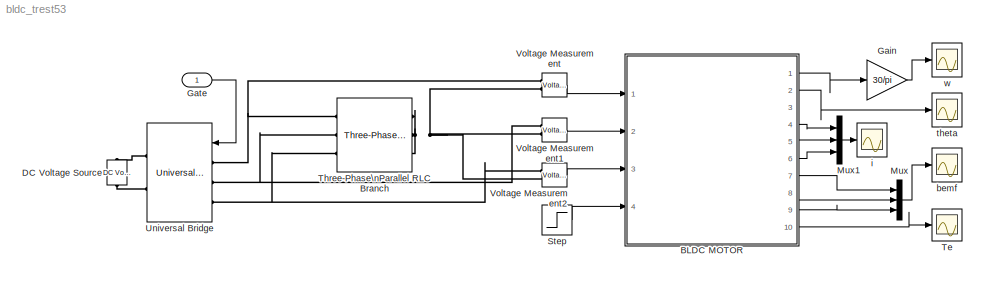
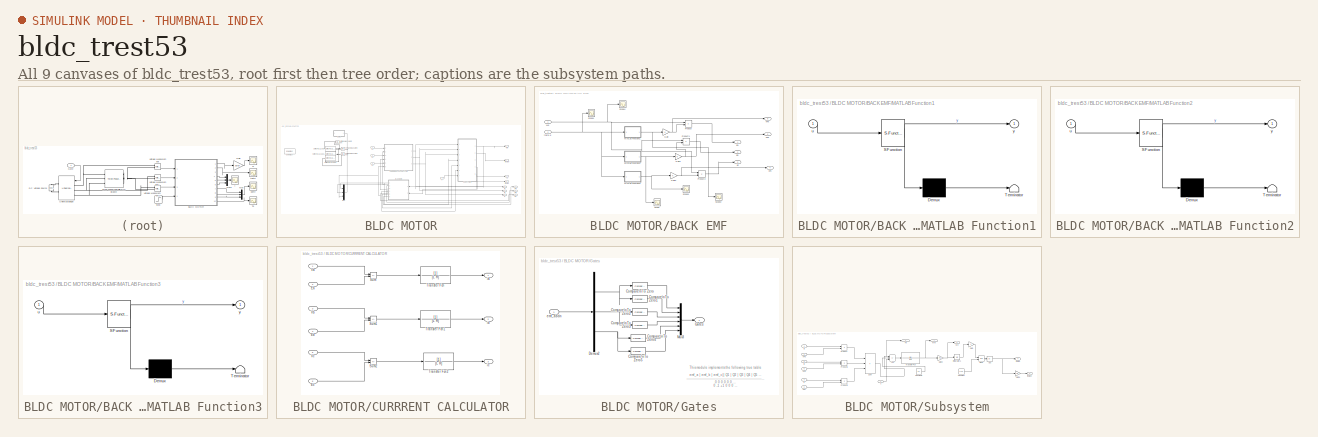
[diagram: thumbnail index - all 9 canvases of the model, root first then tree order]
MODEL bldc_trest53
KIND model
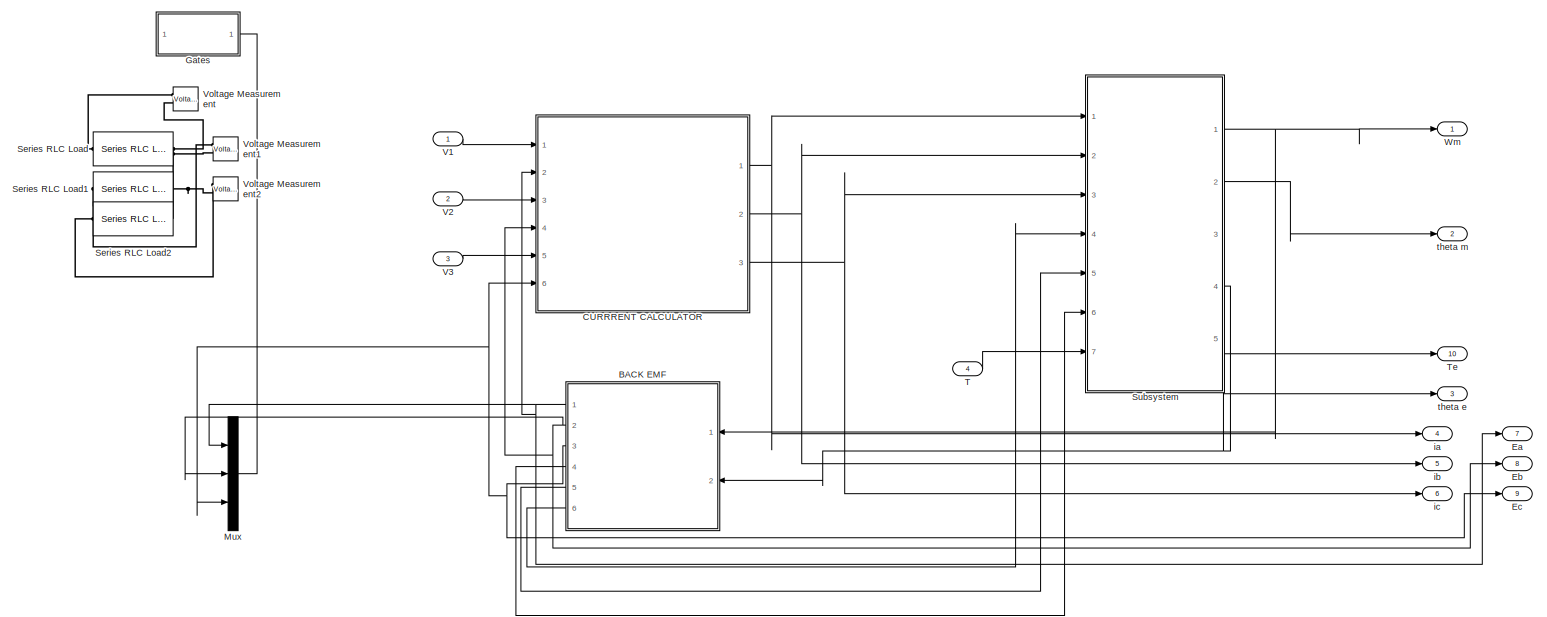
[diagram: BLDC MOTOR - part 1/2, most of the canvas]
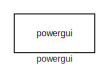
[diagram: BLDC MOTOR - part 2/2, top left region]
BLOCK [SubSystem] BLDC MOTOR
  Ports = [4, 10]
  RequestExecContextInheritance = off
  SID = 117
BLOCK [SubSystem] BLDC MOTOR/BACK EMF
  Ports = [2, 6]
  RequestExecContextInheritance = off
  SID = 146
BLOCK [Outport] BLDC MOTOR/BACK EMF/Ea
  SID = 148
BLOCK [Outport] BLDC MOTOR/BACK EMF/Eb
  Port = 2
  SID = 149
BLOCK [Outport] BLDC MOTOR/BACK EMF/Ec
  Port = 3
  SID = 150
BLOCK [Gain] BLDC MOTOR/BACK EMF/Gain
  Gain = K
  SID = 177
BLOCK [Gain] BLDC MOTOR/BACK EMF/Gain1
  Gain = K
  SID = 183
BLOCK [Gain] BLDC MOTOR/BACK EMF/Gain2
  Gain = K
  SID = 186
BLOCK [Outport] BLDC MOTOR/BACK EMF/KFa
  Port = 6
  SID = 187
BLOCK [Outport] BLDC MOTOR/BACK EMF/KFb
  Port = 5
  SID = 188
BLOCK [Outport] BLDC MOTOR/BACK EMF/KFc
  Port = 4
  SID = 189
BLOCK [SubSystem] BLDC MOTOR/BACK EMF/MATLAB Function1
  ErrorFcn = Stateflow.Translate.translate
  PermitHierarchicalResolution = ExplicitOnly
  Ports = [1, 1]
  RequestExecContextInheritance = off
  SFBlockType = MATLAB Function
  SID = 233
  TreatAsAtomicUnit = on
BLOCK [Demux] BLDC MOTOR/BACK EMF/MATLAB Function1/ Demux 
  Outputs = 1
  Ports = [1, 1]
  SID = 233::47
BLOCK [S-Function] BLDC MOTOR/BACK EMF/MATLAB Function1/ SFunction 
  EnableBusSupport = on
  FunctionName = sf_sfun
  PortCounts = [1 2]
  Ports = [1, 2]
  SFcnIsStateOwnerBlock = off
  SFunctionDeploymentMode = off
  SID = 233::46
  Tag = Stateflow S-Function 1
BLOCK [Terminator] BLDC MOTOR/BACK EMF/MATLAB Function1/ Terminator 
  SID = 233::48
BLOCK [Inport] BLDC MOTOR/BACK EMF/MATLAB Function1/u
  SID = 233::1
BLOCK [Outport] BLDC MOTOR/BACK EMF/MATLAB Function1/y
  SID = 233::5
BLOCK [SubSystem] BLDC MOTOR/BACK EMF/MATLAB Function2
  ErrorFcn = Stateflow.Translate.translate
  PermitHierarchicalResolution = ExplicitOnly
  Ports = [1, 1]
  RequestExecContextInheritance = off
  SFBlockType = MATLAB Function
  SID = 243
  TreatAsAtomicUnit = on
BLOCK [Demux] BLDC MOTOR/BACK EMF/MATLAB Function2/ Demux 
  Outputs = 1
  Ports = [1, 1]
  SID = 243::47
BLOCK [S-Function] BLDC MOTOR/BACK EMF/MATLAB Function2/ SFunction 
  EnableBusSupport = on
  FunctionName = sf_sfun
  PortCounts = [1 2]
  Ports = [1, 2]
  SFcnIsStateOwnerBlock = off
  SFunctionDeploymentMode = off
  SID = 243::46
  Tag = Stateflow S-Function 2
BLOCK [Terminator] BLDC MOTOR/BACK EMF/MATLAB Function2/ Terminator 
  SID = 243::48
BLOCK [Inport] BLDC MOTOR/BACK EMF/MATLAB Function2/u
  SID = 243::1
BLOCK [Outport] BLDC MOTOR/BACK EMF/MATLAB Function2/y
  SID = 243::5
BLOCK [SubSystem] BLDC MOTOR/BACK EMF/MATLAB Function3
  ErrorFcn = Stateflow.Translate.translate
  PermitHierarchicalResolution = ExplicitOnly
  Ports = [1, 1]
  RequestExecContextInheritance = off
  SFBlockType = MATLAB Function
  SID = 246
  TreatAsAtomicUnit = on
BLOCK [Demux] BLDC MOTOR/BACK EMF/MATLAB Function3/ Demux 
  Outputs = 1
  Ports = [1, 1]
  SID = 246::47
BLOCK [S-Function] BLDC MOTOR/BACK EMF/MATLAB Function3/ SFunction 
  EnableBusSupport = on
  FunctionName = sf_sfun
  PortCounts = [1 2]
  Ports = [1, 2]
  SFcnIsStateOwnerBlock = off
  SFunctionDeploymentMode = off
  SID = 246::46
  Tag = Stateflow S-Function 3
BLOCK [Terminator] BLDC MOTOR/BACK EMF/MATLAB Function3/ Terminator 
  SID = 246::48
BLOCK [Inport] BLDC MOTOR/BACK EMF/MATLAB Function3/u
  SID = 246::1
BLOCK [Outport] BLDC MOTOR/BACK EMF/MATLAB Function3/y
  SID = 246::5
BLOCK [Product] BLDC MOTOR/BACK EMF/Product
  Ports = [2, 1]
  SID = 178
BLOCK [Product] BLDC MOTOR/BACK EMF/Product1
  Ports = [2, 1]
  SID = 182
BLOCK [Product] BLDC MOTOR/BACK EMF/Product2
  Ports = [2, 1]
  SID = 185
BLOCK [Scope] BLDC MOTOR/BACK EMF/Scope
  Floating = off
  NumInputPorts = 1
  Ports = [1]
  SID = 283
  ScopeSpecificationString = Simulink.scopes.TimeScopeBlockCfg('CurrentConfiguration', extmgr.ConfigurationSet(extmgr.Configuration('Core','General UI',true,'FigureColor',[0.156862745098039 0.156862745098039 0.156862745098039]),extmgr.Configuration('Core','Source UI',true),extmgr.Configuration('Sources','WiredSimulink',true,'DataLoggingVariableName','ScopeData4','DataLoggingSaveFormat','StructureWithTime','DataLoggingDecimati...<+3138ch>
BLOCK [Scope] BLDC MOTOR/BACK EMF/Scope1
  Floating = off
  NumInputPorts = 1
  Ports = [1]
  SID = 253
  ScopeSpecificationString = Simulink.scopes.TimeScopeBlockCfg('CurrentConfiguration', extmgr.ConfigurationSet(extmgr.Configuration('Core','General UI',true,'FigureColor',[0.156862745098039 0.156862745098039 0.156862745098039]),extmgr.Configuration('Core','Source UI',true),extmgr.Configuration('Sources','WiredSimulink',true,'DataLoggingVariableName','ScopeData1','DataLoggingSaveFormat','StructureWithTime','DataLoggingDecimati...<+3124ch>
BLOCK [Scope] BLDC MOTOR/BACK EMF/Scope2
  Floating = off
  NumInputPorts = 1
  Ports = [1]
  SID = 284
  ScopeSpecificationString = Simulink.scopes.TimeScopeBlockCfg('CurrentConfiguration', extmgr.ConfigurationSet(extmgr.Configuration('Core','General UI',true,'FigureColor',[0.156862745098039 0.156862745098039 0.156862745098039]),extmgr.Configuration('Core','Source UI',true),extmgr.Configuration('Sources','WiredSimulink',true,'DataLoggingVariableName','ScopeData1','DataLoggingSaveFormat','StructureWithTime','DataLoggingDecimati...<+3121ch>
BLOCK [Scope] BLDC MOTOR/BACK EMF/Scope3
  Floating = off
  NumInputPorts = 1
  Ports = [1]
  SID = 285
  ScopeSpecificationString = Simulink.scopes.TimeScopeBlockCfg('CurrentConfiguration', extmgr.ConfigurationSet(extmgr.Configuration('Core','General UI',true,'FigureColor',[0.156862745098039 0.156862745098039 0.156862745098039]),extmgr.Configuration('Core','Source UI',true),extmgr.Configuration('Sources','WiredSimulink',true,'DataLoggingVariableName','ScopeData3','DataLoggingSaveFormat','StructureWithTime','DataLoggingDecimati...<+3122ch>
BLOCK [Scope] BLDC MOTOR/BACK EMF/Scope4
  Floating = off
  NumInputPorts = 1
  Ports = [1]
  SID = 276
  ScopeSpecificationString = Simulink.scopes.TimeScopeBlockCfg('CurrentConfiguration', extmgr.ConfigurationSet(extmgr.Configuration('Core','General UI',true,'FigureColor',[0.156862745098039 0.156862745098039 0.156862745098039]),extmgr.Configuration('Core','Source UI',true),extmgr.Configuration('Sources','WiredSimulink',true,'DataLoggingVariableName','ScopeData2','DataLoggingSaveFormat','StructureWithTime','DataLoggingDecimati...<+3127ch>
BLOCK [Inport] BLDC MOTOR/BACK EMF/We
  SID = 147
BLOCK [Inport] BLDC MOTOR/BACK EMF/theta e
  Port = 2
  SID = 172
BLOCK [SubSystem] BLDC MOTOR/CURRRENT CALCULATOR
  Ports = [6, 3]
  RequestExecContextInheritance = off
  SID = 120
BLOCK [Inport] BLDC MOTOR/CURRRENT CALCULATOR/Ea
  Port = 2
  SID = 122
BLOCK [Inport] BLDC MOTOR/CURRRENT CALCULATOR/Eb
  Port = 4
  SID = 124
BLOCK [Inport] BLDC MOTOR/CURRRENT CALCULATOR/Ec
  Port = 6
  SID = 126
BLOCK [Sum] BLDC MOTOR/CURRRENT CALCULATOR/Sum
  IconShape = rectangular
  Inputs = +-
  Ports = [2, 1]
  SID = 136
BLOCK [Sum] BLDC MOTOR/CURRRENT CALCULATOR/Sum1
  IconShape = rectangular
  Inputs = +-
  Ports = [2, 1]
  SID = 137
BLOCK [Sum] BLDC MOTOR/CURRRENT CALCULATOR/Sum2
  IconShape = rectangular
  Inputs = +-
  Ports = [2, 1]
  SID = 138
BLOCK [TransferFcn] BLDC MOTOR/CURRRENT CALCULATOR/Transfer Fcn
  Denominator = [L R]
  SID = 266
BLOCK [TransferFcn] BLDC MOTOR/CURRRENT CALCULATOR/Transfer Fcn1
  Denominator = [L R]
  SID = 267
BLOCK [TransferFcn] BLDC MOTOR/CURRRENT CALCULATOR/Transfer Fcn2
  Denominator = [L R]
  SID = 268
BLOCK [Inport] BLDC MOTOR/CURRRENT CALCULATOR/Va
  SID = 121
BLOCK [Inport] BLDC MOTOR/CURRRENT CALCULATOR/Vb
  Port = 3
  SID = 123
BLOCK [Inport] BLDC MOTOR/CURRRENT CALCULATOR/Vc
  Port = 5
  SID = 125
BLOCK [Outport] BLDC MOTOR/CURRRENT CALCULATOR/ia
  SID = 139
BLOCK [Outport] BLDC MOTOR/CURRRENT CALCULATOR/ib
  Port = 2
  SID = 140
BLOCK [Outport] BLDC MOTOR/CURRRENT CALCULATOR/ic
  Port = 3
  SID = 141
BLOCK [Outport] BLDC MOTOR/Ea
  Port = 7
  SID = 222
BLOCK [Outport] BLDC MOTOR/Eb
  Port = 8
  SID = 223
BLOCK [Outport] BLDC MOTOR/Ec
  Port = 9
  SID = 224
BLOCK [SubSystem] BLDC MOTOR/Gates
  NameLocation = top
  Ports = [1, 1]
  RequestExecContextInheritance = off
  SID = 350
BLOCK [Reference] BLDC MOTOR/Gates/Compare\nTo Zero  REF=simulink/Logic and Bit\nOperations/Compare\nTo Zero
  OutDataTypeStr = boolean
  Ports = [1, 1]
  RTWMemSecDataConstants = Inherit from model
  RTWMemSecDataInternal = Inherit from model
  RTWMemSecDataParameters = Inherit from model
  RTWMemSecFuncExecute = Inherit from model
  RTWMemSecFuncInitTerm = Inherit from model
  SID = 352
  SourceBlock = simulink/Logic and Bit\nOperations/Compare\nTo Zero
  SourceProductBaseCode = SL
  SourceType = Compare To Zero
  ZeroCross = off
  relop = >
BLOCK [Reference] BLDC MOTOR/Gates/Compare\nTo Zero1  REF=simulink/Logic and Bit\nOperations/Compare\nTo Zero
  OutDataTypeStr = boolean
  Ports = [1, 1]
  RTWMemSecDataConstants = Inherit from model
  RTWMemSecDataInternal = Inherit from model
  RTWMemSecDataParameters = Inherit from model
  RTWMemSecFuncExecute = Inherit from model
  RTWMemSecFuncInitTerm = Inherit from model
  SID = 353
  SourceBlock = simulink/Logic and Bit\nOperations/Compare\nTo Zero
  SourceProductBaseCode = SL
  SourceType = Compare To Zero
  ZeroCross = off
  relop = <
BLOCK [Reference] BLDC MOTOR/Gates/Compare\nTo Zero2  REF=simulink/Logic and Bit\nOperations/Compare\nTo Zero
  OutDataTypeStr = boolean
  Ports = [1, 1]
  RTWMemSecDataConstants = Inherit from model
  RTWMemSecDataInternal = Inherit from model
  RTWMemSecDataParameters = Inherit from model
  RTWMemSecFuncExecute = Inherit from model
  RTWMemSecFuncInitTerm = Inherit from model
  SID = 354
  SourceBlock = simulink/Logic and Bit\nOperations/Compare\nTo Zero
  SourceProductBaseCode = SL
  SourceType = Compare To Zero
  ZeroCross = off
  relop = >
BLOCK [Reference] BLDC MOTOR/Gates/Compare\nTo Zero3  REF=simulink/Logic and Bit\nOperations/Compare\nTo Zero
  OutDataTypeStr = boolean
  Ports = [1, 1]
  RTWMemSecDataConstants = Inherit from model
  RTWMemSecDataInternal = Inherit from model
  RTWMemSecDataParameters = Inherit from model
  RTWMemSecFuncExecute = Inherit from model
  RTWMemSecFuncInitTerm = Inherit from model
  SID = 355
  SourceBlock = simulink/Logic and Bit\nOperations/Compare\nTo Zero
  SourceProductBaseCode = SL
  SourceType = Compare To Zero
  ZeroCross = off
  relop = <
BLOCK [Reference] BLDC MOTOR/Gates/Compare\nTo Zero4  REF=simulink/Logic and Bit\nOperations/Compare\nTo Zero
  OutDataTypeStr = boolean
  Ports = [1, 1]
  RTWMemSecDataConstants = Inherit from model
  RTWMemSecDataInternal = Inherit from model
  RTWMemSecDataParameters = Inherit from model
  RTWMemSecFuncExecute = Inherit from model
  RTWMemSecFuncInitTerm = Inherit from model
  SID = 356
  SourceBlock = simulink/Logic and Bit\nOperations/Compare\nTo Zero
  SourceProductBaseCode = SL
  SourceType = Compare To Zero
  ZeroCross = off
  relop = >
BLOCK [Reference] BLDC MOTOR/Gates/Compare\nTo Zero5  REF=simulink/Logic and Bit\nOperations/Compare\nTo Zero
  OutDataTypeStr = boolean
  Ports = [1, 1]
  RTWMemSecDataConstants = Inherit from model
  RTWMemSecDataInternal = Inherit from model
  RTWMemSecDataParameters = Inherit from model
  RTWMemSecFuncExecute = Inherit from model
  RTWMemSecFuncInitTerm = Inherit from model
  SID = 357
  SourceBlock = simulink/Logic and Bit\nOperations/Compare\nTo Zero
  SourceProductBaseCode = SL
  SourceType = Compare To Zero
  ZeroCross = off
  relop = <
BLOCK [Demux] BLDC MOTOR/Gates/Demux2
  Outputs = 3
  Ports = [1, 3]
  SID = 358
BLOCK [Outport] BLDC MOTOR/Gates/Gates
  SID = 360
BLOCK [Mux] BLDC MOTOR/Gates/Mux3
  DisplayOption = bar
  Inputs = 6
  Ports = [6, 1]
  SID = 359
BLOCK [Inport] BLDC MOTOR/Gates/emf_abc\n
  SID = 351
BLOCK [Mux] BLDC MOTOR/Mux
  DisplayOption = bar
  Inputs = 3
  Ports = [3, 1]
  SID = 303
BLOCK [Reference] BLDC MOTOR/Series RLC Load  REF=spsSeriesRLCLoadLib/Series RLC Load
  ActivePower = 10e3
  AttributesFormatString = \\n
  CapacitivePower = 100
  InductivePower = 100
  InitialCurrent = 0
  InitialVoltage = 0
  LConnTagsString = a
  LoadType = constant Z
  Measurements = None
  NominalFrequency = 60
  NominalVoltage = 1000
  Ports = [0, 0, 0, 0, 0, 1, 1]
  RConnTagsString = __new0
  SID = 366
  SetiL0 = off
  Setx0 = off
  SourceBlock = spsSeriesRLCLoadLib/Series RLC Load
  SourceProductBaseCode = PS
  SourceType = Series RLC Load
BLOCK [Reference] BLDC MOTOR/Series RLC Load1  REF=spsSeriesRLCLoadLib/Series RLC Load
  ActivePower = 10e3
  AttributesFormatString = \\n
  CapacitivePower = 100
  InductivePower = 100
  InitialCurrent = 0
  InitialVoltage = 0
  LConnTagsString = a
  LoadType = constant Z
  Measurements = None
  NominalFrequency = 60
  NominalVoltage = 1000
  Ports = [0, 0, 0, 0, 0, 1, 1]
  RConnTagsString = __new0
  SID = 367
  SetiL0 = off
  Setx0 = off
  SourceBlock = spsSeriesRLCLoadLib/Series RLC Load
  SourceProductBaseCode = PS
  SourceType = Series RLC Load
BLOCK [Reference] BLDC MOTOR/Series RLC Load2  REF=spsSeriesRLCLoadLib/Series RLC Load
  ActivePower = 10e3
  AttributesFormatString = \\n
  CapacitivePower = 100
  InductivePower = 100
  InitialCurrent = 0
  InitialVoltage = 0
  LConnTagsString = a
  LoadType = constant Z
  Measurements = None
  NominalFrequency = 60
  NominalVoltage = 1000
  Ports = [0, 0, 0, 0, 0, 1, 1]
  RConnTagsString = __new0
  SID = 368
  SetiL0 = off
  Setx0 = off
  SourceBlock = spsSeriesRLCLoadLib/Series RLC Load
  SourceProductBaseCode = PS
  SourceType = Series RLC Load
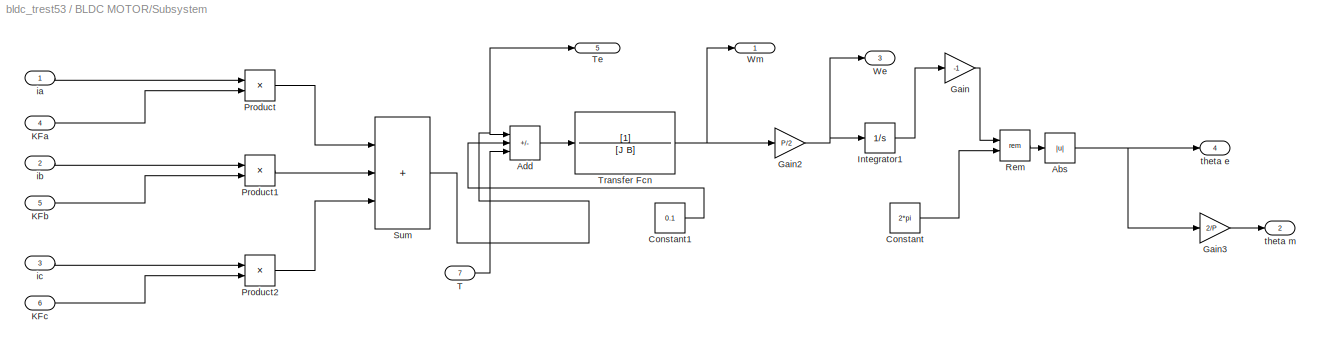
BLOCK [SubSystem] BLDC MOTOR/Subsystem
  Ports = [7, 5]
  RequestExecContextInheritance = off
  SID = 151
BLOCK [Abs] BLDC MOTOR/Subsystem/Abs
  SID = 373
  SaturateOnIntegerOverflow = off
BLOCK [Sum] BLDC MOTOR/Subsystem/Add
  IconShape = rectangular
  Inputs = ++-
  Ports = [3, 1]
  SID = 194
BLOCK [Constant] BLDC MOTOR/Subsystem/Constant
  SID = 249
  Value = 2*pi
BLOCK [Constant] BLDC MOTOR/Subsystem/Constant1
  SID = 372
  Value = 0.1
BLOCK [Gain] BLDC MOTOR/Subsystem/Gain
  Gain = -1
  SID = 348
BLOCK [Gain] BLDC MOTOR/Subsystem/Gain2
  Gain = P/2
  SID = 201
BLOCK [Gain] BLDC MOTOR/Subsystem/Gain3
  Gain = 2/P
  SID = 204
BLOCK [Integrator] BLDC MOTOR/Subsystem/Integrator1
  Ports = [1, 1]
  SID = 202
BLOCK [Inport] BLDC MOTOR/Subsystem/KFa
  Port = 4
  SID = 190
BLOCK [Inport] BLDC MOTOR/Subsystem/KFb
  Port = 5
  SID = 191
BLOCK [Inport] BLDC MOTOR/Subsystem/KFc
  Port = 6
  SID = 192
BLOCK [Product] BLDC MOTOR/Subsystem/Product
  Ports = [2, 1]
  SID = 160
BLOCK [Product] BLDC MOTOR/Subsystem/Product1
  Ports = [2, 1]
  SID = 161
BLOCK [Product] BLDC MOTOR/Subsystem/Product2
  Ports = [2, 1]
  SID = 162
BLOCK [Math] BLDC MOTOR/Subsystem/Rem
  Operator = rem
  Ports = [2, 1]
  SID = 271
  SignedPower = on
BLOCK [Sum] BLDC MOTOR/Subsystem/Sum
  IconShape = rectangular
  Inputs = +++
  Ports = [3, 1]
  SID = 163
BLOCK [Inport] BLDC MOTOR/Subsystem/T
  Port = 7
  SID = 195
BLOCK [Outport] BLDC MOTOR/Subsystem/Te
  Port = 5
  SID = 261
BLOCK [TransferFcn] BLDC MOTOR/Subsystem/Transfer Fcn
  Denominator = [J B]
  SID = 260
BLOCK [Outport] BLDC MOTOR/Subsystem/We
  Port = 3
  SID = 166
BLOCK [Outport] BLDC MOTOR/Subsystem/Wm
  SID = 153
BLOCK [Inport] BLDC MOTOR/Subsystem/ia
  SID = 152
BLOCK [Inport] BLDC MOTOR/Subsystem/ib
  Port = 2
  SID = 155
BLOCK [Inport] BLDC MOTOR/Subsystem/ic
  Port = 3
  SID = 156
BLOCK [Outport] BLDC MOTOR/Subsystem/theta e
  Port = 4
  SID = 167
BLOCK [Outport] BLDC MOTOR/Subsystem/theta m
  Port = 2
  SID = 203
BLOCK [Inport] BLDC MOTOR/T
  Port = 4
  SID = 258
BLOCK [Outport] BLDC MOTOR/Te
  Port = 10
  SID = 262
BLOCK [Inport] BLDC MOTOR/V1
  SID = 118
BLOCK [Inport] BLDC MOTOR/V2
  Port = 2
  SID = 142
BLOCK [Inport] BLDC MOTOR/V3
  Port = 3
  SID = 143
BLOCK [Reference] BLDC MOTOR/Voltage Measurement  REF=spsVoltageMeasurementLib/Voltage Measurement
  OutputType = Complex
  PSBequivalent = 0
  PhasorSimulation = off
  Ports = [0, 1, 0, 0, 0, 2]
  RTWMemSecDataConstants = Inherit from model
  RTWMemSecDataInternal = Inherit from model
  RTWMemSecDataParameters = Inherit from model
  RTWMemSecFuncExecute = Inherit from model
  RTWMemSecFuncInitTerm = Inherit from model
  SID = 369
  SourceBlock = spsVoltageMeasurementLib/Voltage Measurement
  SourceProductBaseCode = PS
  SourceType = Voltage Measurement
  UserDataPersistent = on
BLOCK [Reference] BLDC MOTOR/Voltage Measurement1  REF=spsVoltageMeasurementLib/Voltage Measurement
  OutputType = Complex
  PSBequivalent = 0
  PhasorSimulation = off
  Ports = [0, 1, 0, 0, 0, 2]
  RTWMemSecDataConstants = Inherit from model
  RTWMemSecDataInternal = Inherit from model
  RTWMemSecDataParameters = Inherit from model
  RTWMemSecFuncExecute = Inherit from model
  RTWMemSecFuncInitTerm = Inherit from model
  SID = 370
  SourceBlock = spsVoltageMeasurementLib/Voltage Measurement
  SourceProductBaseCode = PS
  SourceType = Voltage Measurement
  UserDataPersistent = on
BLOCK [Reference] BLDC MOTOR/Voltage Measurement2  REF=spsVoltageMeasurementLib/Voltage Measurement
  OutputType = Complex
  PSBequivalent = 0
  PhasorSimulation = off
  Ports = [0, 1, 0, 0, 0, 2]
  RTWMemSecDataConstants = Inherit from model
  RTWMemSecDataInternal = Inherit from model
  RTWMemSecDataParameters = Inherit from model
  RTWMemSecFuncExecute = Inherit from model
  RTWMemSecFuncInitTerm = Inherit from model
  SID = 371
  SourceBlock = spsVoltageMeasurementLib/Voltage Measurement
  SourceProductBaseCode = PS
  SourceType = Voltage Measurement
  UserDataPersistent = on
BLOCK [Outport] BLDC MOTOR/Wm
  SID = 209
BLOCK [Outport] BLDC MOTOR/ia
  Port = 4
  SID = 219
BLOCK [Outport] BLDC MOTOR/ib
  Port = 5
  SID = 220
BLOCK [Outport] BLDC MOTOR/ic
  Port = 6
  SID = 221
BLOCK [Reference] BLDC MOTOR/powergui  REF=spspowerguiLib/powergui
  AutomaticDiscreteSolvers = off
  ContinueOnMaxIteration = off
  CurrentSourceSwitches = off
  DisableRonSwitches = off
  DisableSnubberDevices = off
  DisableVfSwitches = off
  DisplayEquations = off
  DisplayStyle = 1
  EnableUseOfTLC = off
  ErrMax = 1e-4
  ExternalGateDelay = off
  Frange = [0:2:500]
  FreqAxis = off
  FunctionMessages = off
  HookPort = off
  Interpol = off
  Iterations = 50
  MaxFrequency = 1000
  NonlinearTolerance = 1e-4
  Pbase = 100e6
  Ports = []
  Priority = 1
  RTWMemSecDataConstants = Inherit from model
  RTWMemSecDataInternal = Inherit from model
  RTWMemSecDataParameters = Inherit from model
  RTWMemSecFuncExecute = Inherit from model
  RTWMemSecFuncInitTerm = Inherit from model
  ResistiveCurrentMeasurement = off
  RestoreLinks = warning
  RmsSteady = 1
  SID = 364
  SPID = on
  SampleTime = 50e-6
  ShowGrid = off
  SolverType = Tustin/Backward Euler (TBE)
  SourceBlock = spspowerguiLib/powergui
  SourceProductBaseCode = PS
  SourceType = PSB option menu block
  StartTime = 0.0
  SwTol = 0
  Ts = 100
  UnitsV = kV
  UnitsW = MW
  Xlog = on
  Ylog = off
  ZoomFFT = off
  buscounter = 0
  cycles = 1
  display = off
  echomessages = off
  frequency = 60
  frequencyindice = 0
  frequencyindicesteady = 1
  fundamental = 60
  methode = off
  nMaxIteration = 100
  save = off
  structure = 0
  variable = ZData
  x0status = blocks
BLOCK [Outport] BLDC MOTOR/theta e
  Port = 3
  SID = 212
BLOCK [Outport] BLDC MOTOR/theta m
  Port = 2
  SID = 210
BLOCK [Reference] DC Voltage Source  REF=spsDCVoltageSourceLib/DC Voltage Source
  Amplitude = 300
  Measurements = None
  NameLocation = right
  Ports = [0, 0, 0, 0, 0, 1, 1]
  RTWMemSecDataConstants = Inherit from model
  RTWMemSecDataInternal = Inherit from model
  RTWMemSecDataParameters = Inherit from model
  RTWMemSecFuncExecute = Inherit from model
  RTWMemSecFuncInitTerm = Inherit from model
  SID = 365
  SourceBlock = spsDCVoltageSourceLib/DC Voltage Source
  SourceProductBaseCode = PS
  SourceType = DC Voltage Source
BLOCK [Gain] Gain
  Gain = 30/pi
  SID = 377
BLOCK [Inport] Gate
  SID = 386
BLOCK [Mux] Mux
  DisplayOption = bar
  Inputs = 3
  Ports = [3, 1]
  SID = 374
BLOCK [Mux] Mux1
  DisplayOption = bar
  Inputs = 3
  Ports = [3, 1]
  SID = 375
BLOCK [Step] Step
  After = 9
  SID = 264
  SampleTime = 0
  Time = 0.5
BLOCK [Scope] Te
  Floating = off
  NumInputPorts = 1
  Ports = [1]
  SID = 273
  ScopeSpecificationString = Simulink.scopes.TimeScopeBlockCfg('CurrentConfiguration', extmgr.ConfigurationSet(extmgr.Configuration('Core','General UI',true,'FigureColor',[1 1 1]),extmgr.Configuration('Core','Source UI',true),extmgr.Configuration('Sources','WiredSimulink',true,'DataLoggingVariableName','ScopeData1','DataLoggingSaveFormat','StructureWithTime','DataLoggingDecimation','1','DataLoggingDecimateData',true),extmgr.C...<+3116ch>
BLOCK [Reference] Three-Phase\nParallel RLC Branch  REF=spsThreePhaseParallelRLCBranchLib/Three-Phase\nParallel RLC Branch
  AttributesFormatString = \\n
  BranchType = R
  Capacitance = 1e-6
  Inductance = 1e-3
  LConnTagsString = A|B|C
  Measurements = None
  Ports = [0, 0, 0, 0, 0, 3, 3]
  RConnTagsString = A|B|C
  Resistance = 1
  SID = 379
  SourceBlock = spsThreePhaseParallelRLCBranchLib/Three-Phase\nParallel RLC Branch
  SourceProductBaseCode = PS
  SourceType = Three-Phase Parallel RLC Branch
BLOCK [Reference] Universal Bridge  REF=spsUniversalBridgeLib/Universal Bridge
  Arms = 3
  Device = MOSFET / Diodes
  ForwardVoltage = 0
  ForwardVoltages = [  0  0  ]
  GTOparameters = [ 10e-6 , 20e-6 ]
  IGBTparameters = [ 1e-6 , 2e-6 ]
  Lon = 0
  Measurements = None
  Measurements_2 = None
  Ports = [1, 0, 0, 0, 0, 3, 2]
  RTWMemSecDataConstants = Inherit from model
  RTWMemSecDataInternal = Inherit from model
  RTWMemSecDataParameters = Inherit from model
  RTWMemSecFuncExecute = Inherit from model
  RTWMemSecFuncInitTerm = Inherit from model
  Ron = 1e-3
  SID = 362
  SnubberCapacitance = 1e-6
  SnubberResistance = 5000
  SourceBlock = spsUniversalBridgeLib/Universal Bridge
  SourceProductBaseCode = PS
  SourceType = Universal Bridge
  converterType = Rectifier
BLOCK [Reference] Voltage Measurement  REF=spsVoltageMeasurementLib/Voltage Measurement
  OutputType = Complex
  PSBequivalent = 0
  PhasorSimulation = off
  Ports = [0, 1, 0, 0, 0, 2]
  RTWMemSecDataConstants = Inherit from model
  RTWMemSecDataInternal = Inherit from model
  RTWMemSecDataParameters = Inherit from model
  RTWMemSecFuncExecute = Inherit from model
  RTWMemSecFuncInitTerm = Inherit from model
  SID = 380
  SourceBlock = spsVoltageMeasurementLib/Voltage Measurement
  SourceProductBaseCode = PS
  SourceType = Voltage Measurement
  UserDataPersistent = on
BLOCK [Reference] Voltage Measurement1  REF=spsVoltageMeasurementLib/Voltage Measurement
  OutputType = Complex
  PSBequivalent = 0
  PhasorSimulation = off
  Ports = [0, 1, 0, 0, 0, 2]
  RTWMemSecDataConstants = Inherit from model
  RTWMemSecDataInternal = Inherit from model
  RTWMemSecDataParameters = Inherit from model
  RTWMemSecFuncExecute = Inherit from model
  RTWMemSecFuncInitTerm = Inherit from model
  SID = 381
  SourceBlock = spsVoltageMeasurementLib/Voltage Measurement
  SourceProductBaseCode = PS
  SourceType = Voltage Measurement
  UserDataPersistent = on
BLOCK [Reference] Voltage Measurement2  REF=spsVoltageMeasurementLib/Voltage Measurement
  OutputType = Complex
  PSBequivalent = 0
  PhasorSimulation = off
  Ports = [0, 1, 0, 0, 0, 2]
  RTWMemSecDataConstants = Inherit from model
  RTWMemSecDataInternal = Inherit from model
  RTWMemSecDataParameters = Inherit from model
  RTWMemSecFuncExecute = Inherit from model
  RTWMemSecFuncInitTerm = Inherit from model
  SID = 382
  SourceBlock = spsVoltageMeasurementLib/Voltage Measurement
  SourceProductBaseCode = PS
  SourceType = Voltage Measurement
  UserDataPersistent = on
BLOCK [Scope] bemf
  Floating = off
  NumInputPorts = 1
  Ports = [1]
  SID = 228
  ScopeSpecificationString = Simulink.scopes.TimeScopeBlockCfg('CurrentConfiguration', extmgr.ConfigurationSet(extmgr.Configuration('Core','General UI',true,'FigureColor',[1 1 1]),extmgr.Configuration('Core','Source UI',true),extmgr.Configuration('Sources','WiredSimulink',true,'DataLoggingVariableName','ScopeData3','DataLoggingSaveFormat','StructureWithTime','DataLoggingDecimation','1','DataLoggingDecimateData',true),extmgr.C...<+2253ch>
BLOCK [Scope] i
  Floating = off
  NumInputPorts = 1
  Ports = [1]
  SID = 376
  ScopeSpecificationString = Simulink.scopes.TimeScopeBlockCfg('CurrentConfiguration', extmgr.ConfigurationSet(extmgr.Configuration('Core','General UI',true,'FigureColor',[1 1 1]),extmgr.Configuration('Core','Source UI',true),extmgr.Configuration('Sources','WiredSimulink',true,'DataLoggingVariableName','ScopeData6','DataLoggingSaveFormat','StructureWithTime','DataLoggingDecimation','1','DataLoggingDecimateData',true),extmgr.C...<+2335ch>
BLOCK [Scope] theta
  Floating = off
  NumInputPorts = 1
  Ports = [1]
  SID = 226
  ScopeSpecificationString = Simulink.scopes.TimeScopeBlockCfg('CurrentConfiguration', extmgr.ConfigurationSet(extmgr.Configuration('Core','General UI',true,'FigureColor',[1 1 1]),extmgr.Configuration('Core','Source UI',true),extmgr.Configuration('Sources','WiredSimulink',true,'DataLoggingVariableName','ScopeData1','DataLoggingSaveFormat','StructureWithTime','DataLoggingDecimation','1','DataLoggingDecimateData',true),extmgr.C...<+3122ch>
BLOCK [Scope] w
  Floating = off
  NumInputPorts = 1
  Ports = [1]
  SID = 225
  ScopeSpecificationString = Simulink.scopes.TimeScopeBlockCfg('CurrentConfiguration', extmgr.ConfigurationSet(extmgr.Configuration('Core','General UI',true,'FigureColor',[1 1 1]),extmgr.Configuration('Core','Source UI',true),extmgr.Configuration('Sources','WiredSimulink',true,'DataLoggingSaveFormat','StructureWithTime','DataLoggingDecimation','1','DataLoggingDecimateData',true),extmgr.Configuration('Visuals','Time Domain',tr...<+3167ch>
ANNOTATION BLDC MOTOR/Gates: This module implements the following true table\n\n emf_a | emf_b | emf_c || Q1 | Q2 | Q3 | Q4 | Q5 | Q6\n ------------------------------------------------------------------------------------------------------------------\n 0 0 0 0 0 0 0 0 0\n 0 -1 +1 0 0 0 1 1 0\n -1 +1 0 0 1 1 0 0 0\n -1 0 +1 0 1 0 0 1 0\n +1 0 -1 1 0 0 0 0 1\n +1 -1 0 1 0 0 1 0 0\n 0 +1 -1 0 0 1 0 0 1\n 0 0 0 0 0 0 0 0 0\n
NET BLDC MOTOR/BACK EMF/Gain1:1 -> BLDC MOTOR/BACK EMF/KFb:1, BLDC MOTOR/BACK EMF/Product1:2
NET BLDC MOTOR/BACK EMF/Gain2:1 -> BLDC MOTOR/BACK EMF/KFc:1, BLDC MOTOR/BACK EMF/Product2:2
NET BLDC MOTOR/BACK EMF/Gain:1 -> BLDC MOTOR/BACK EMF/KFa:1, BLDC MOTOR/BACK EMF/Product:2
LINE BLDC MOTOR/BACK EMF/MATLAB Function1/ Demux :1 -> BLDC MOTOR/BACK EMF/MATLAB Function1/ Terminator :1
LINE BLDC MOTOR/BACK EMF/MATLAB Function1/ SFunction :1 -> BLDC MOTOR/BACK EMF/MATLAB Function1/ Demux :1
LINE BLDC MOTOR/BACK EMF/MATLAB Function1/ SFunction :2 -> BLDC MOTOR/BACK EMF/MATLAB Function1/y:1
LINE BLDC MOTOR/BACK EMF/MATLAB Function1/u:1 -> BLDC MOTOR/BACK EMF/MATLAB Function1/ SFunction :1
NET BLDC MOTOR/BACK EMF/MATLAB Function1:1 -> BLDC MOTOR/BACK EMF/Gain:1, BLDC MOTOR/BACK EMF/Scope2:1
LINE BLDC MOTOR/BACK EMF/MATLAB Function2/ Demux :1 -> BLDC MOTOR/BACK EMF/MATLAB Function2/ Terminator :1
LINE BLDC MOTOR/BACK EMF/MATLAB Function2/ SFunction :1 -> BLDC MOTOR/BACK EMF/MATLAB Function2/ Demux :1
LINE BLDC MOTOR/BACK EMF/MATLAB Function2/ SFunction :2 -> BLDC MOTOR/BACK EMF/MATLAB Function2/y:1
LINE BLDC MOTOR/BACK EMF/MATLAB Function2/u:1 -> BLDC MOTOR/BACK EMF/MATLAB Function2/ SFunction :1
NET BLDC MOTOR/BACK EMF/MATLAB Function2:1 -> BLDC MOTOR/BACK EMF/Gain1:1, BLDC MOTOR/BACK EMF/Scope:1
LINE BLDC MOTOR/BACK EMF/MATLAB Function3/ Demux :1 -> BLDC MOTOR/BACK EMF/MATLAB Function3/ Terminator :1
LINE BLDC MOTOR/BACK EMF/MATLAB Function3/ SFunction :1 -> BLDC MOTOR/BACK EMF/MATLAB Function3/ Demux :1
LINE BLDC MOTOR/BACK EMF/MATLAB Function3/ SFunction :2 -> BLDC MOTOR/BACK EMF/MATLAB Function3/y:1
LINE BLDC MOTOR/BACK EMF/MATLAB Function3/u:1 -> BLDC MOTOR/BACK EMF/MATLAB Function3/ SFunction :1
NET BLDC MOTOR/BACK EMF/MATLAB Function3:1 -> BLDC MOTOR/BACK EMF/Gain2:1, BLDC MOTOR/BACK EMF/Scope3:1
LINE BLDC MOTOR/BACK EMF/Product1:1 -> BLDC MOTOR/BACK EMF/Eb:1
LINE BLDC MOTOR/BACK EMF/Product2:1 -> BLDC MOTOR/BACK EMF/Ec:1
LINE BLDC MOTOR/BACK EMF/Product:1 -> BLDC MOTOR/BACK EMF/Ea:1
NET BLDC MOTOR/BACK EMF/We:1 -> BLDC MOTOR/BACK EMF/Product1:1, BLDC MOTOR/BACK EMF/Product2:1, BLDC MOTOR/BACK EMF/Product:1, BLDC MOTOR/BACK EMF/Scope4:1
NET BLDC MOTOR/BACK EMF/theta e:1 -> BLDC MOTOR/BACK EMF/MATLAB Function1:1, BLDC MOTOR/BACK EMF/MATLAB Function2:1, BLDC MOTOR/BACK EMF/MATLAB Function3:1, BLDC MOTOR/BACK EMF/Scope1:1
NET BLDC MOTOR/BACK EMF:1 -> BLDC MOTOR/CURRRENT CALCULATOR:2, BLDC MOTOR/Ea:1, BLDC MOTOR/Mux:1
NET BLDC MOTOR/BACK EMF:2 -> BLDC MOTOR/CURRRENT CALCULATOR:4, BLDC MOTOR/Eb:1, BLDC MOTOR/Mux:2
NET BLDC MOTOR/BACK EMF:3 -> BLDC MOTOR/CURRRENT CALCULATOR:6, BLDC MOTOR/Ec:1, BLDC MOTOR/Mux:3
LINE BLDC MOTOR/BACK EMF:4 -> BLDC MOTOR/Subsystem:6
LINE BLDC MOTOR/BACK EMF:5 -> BLDC MOTOR/Subsystem:5
LINE BLDC MOTOR/BACK EMF:6 -> BLDC MOTOR/Subsystem:4
LINE BLDC MOTOR/CURRRENT CALCULATOR/Ea:1 -> BLDC MOTOR/CURRRENT CALCULATOR/Sum:2
LINE BLDC MOTOR/CURRRENT CALCULATOR/Eb:1 -> BLDC MOTOR/CURRRENT CALCULATOR/Sum1:2
LINE BLDC MOTOR/CURRRENT CALCULATOR/Ec:1 -> BLDC MOTOR/CURRRENT CALCULATOR/Sum2:2
LINE BLDC MOTOR/CURRRENT CALCULATOR/Sum1:1 -> BLDC MOTOR/CURRRENT CALCULATOR/Transfer Fcn1:1
LINE BLDC MOTOR/CURRRENT CALCULATOR/Sum2:1 -> BLDC MOTOR/CURRRENT CALCULATOR/Transfer Fcn2:1
LINE BLDC MOTOR/CURRRENT CALCULATOR/Sum:1 -> BLDC MOTOR/CURRRENT CALCULATOR/Transfer Fcn:1
LINE BLDC MOTOR/CURRRENT CALCULATOR/Transfer Fcn1:1 -> BLDC MOTOR/CURRRENT CALCULATOR/ib:1
LINE BLDC MOTOR/CURRRENT CALCULATOR/Transfer Fcn2:1 -> BLDC MOTOR/CURRRENT CALCULATOR/ic:1
LINE BLDC MOTOR/CURRRENT CALCULATOR/Transfer Fcn:1 -> BLDC MOTOR/CURRRENT CALCULATOR/ia:1
LINE BLDC MOTOR/CURRRENT CALCULATOR/Va:1 -> BLDC MOTOR/CURRRENT CALCULATOR/Sum:1
LINE BLDC MOTOR/CURRRENT CALCULATOR/Vb:1 -> BLDC MOTOR/CURRRENT CALCULATOR/Sum1:1
LINE BLDC MOTOR/CURRRENT CALCULATOR/Vc:1 -> BLDC MOTOR/CURRRENT CALCULATOR/Sum2:1
NET BLDC MOTOR/CURRRENT CALCULATOR:1 -> BLDC MOTOR/Subsystem:1, BLDC MOTOR/ia:1
NET BLDC MOTOR/CURRRENT CALCULATOR:2 -> BLDC MOTOR/Subsystem:2, BLDC MOTOR/ib:1
NET BLDC MOTOR/CURRRENT CALCULATOR:3 -> BLDC MOTOR/Subsystem:3, BLDC MOTOR/ic:1
LINE BLDC MOTOR/Gates/Compare\nTo Zero1:1 -> BLDC MOTOR/Gates/Mux3:2
LINE BLDC MOTOR/Gates/Compare\nTo Zero2:1 -> BLDC MOTOR/Gates/Mux3:3
LINE BLDC MOTOR/Gates/Compare\nTo Zero3:1 -> BLDC MOTOR/Gates/Mux3:4
LINE BLDC MOTOR/Gates/Compare\nTo Zero4:1 -> BLDC MOTOR/Gates/Mux3:5
LINE BLDC MOTOR/Gates/Compare\nTo Zero5:1 -> BLDC MOTOR/Gates/Mux3:6
LINE BLDC MOTOR/Gates/Compare\nTo Zero:1 -> BLDC MOTOR/Gates/Mux3:1
NET BLDC MOTOR/Gates/Demux2:1 -> BLDC MOTOR/Gates/Compare\nTo Zero1:1, BLDC MOTOR/Gates/Compare\nTo Zero:1
NET BLDC MOTOR/Gates/Demux2:2 -> BLDC MOTOR/Gates/Compare\nTo Zero2:1, BLDC MOTOR/Gates/Compare\nTo Zero3:1
NET BLDC MOTOR/Gates/Demux2:3 -> BLDC MOTOR/Gates/Compare\nTo Zero4:1, BLDC MOTOR/Gates/Compare\nTo Zero5:1
LINE BLDC MOTOR/Gates/Mux3:1 -> BLDC MOTOR/Gates/Gates:1
LINE BLDC MOTOR/Gates/emf_abc\n:1 -> BLDC MOTOR/Gates/Demux2:1
LINE BLDC MOTOR/Mux:1 -> BLDC MOTOR/Gates:1
NET BLDC MOTOR/Subsystem/Abs:1 -> BLDC MOTOR/Subsystem/Gain3:1, BLDC MOTOR/Subsystem/theta e:1
LINE BLDC MOTOR/Subsystem/Add:1 -> BLDC MOTOR/Subsystem/Transfer Fcn:1
LINE BLDC MOTOR/Subsystem/Constant1:1 -> BLDC MOTOR/Subsystem/Add:2
LINE BLDC MOTOR/Subsystem/Constant:1 -> BLDC MOTOR/Subsystem/Rem:2
NET BLDC MOTOR/Subsystem/Gain2:1 -> BLDC MOTOR/Subsystem/Integrator1:1, BLDC MOTOR/Subsystem/We:1
LINE BLDC MOTOR/Subsystem/Gain3:1 -> BLDC MOTOR/Subsystem/theta m:1
LINE BLDC MOTOR/Subsystem/Gain:1 -> BLDC MOTOR/Subsystem/Rem:1
LINE BLDC MOTOR/Subsystem/Integrator1:1 -> BLDC MOTOR/Subsystem/Gain:1
LINE BLDC MOTOR/Subsystem/KFa:1 -> BLDC MOTOR/Subsystem/Product:2
LINE BLDC MOTOR/Subsystem/KFb:1 -> BLDC MOTOR/Subsystem/Product1:2
LINE BLDC MOTOR/Subsystem/KFc:1 -> BLDC MOTOR/Subsystem/Product2:2
LINE BLDC MOTOR/Subsystem/Product1:1 -> BLDC MOTOR/Subsystem/Sum:2
LINE BLDC MOTOR/Subsystem/Product2:1 -> BLDC MOTOR/Subsystem/Sum:3
LINE BLDC MOTOR/Subsystem/Product:1 -> BLDC MOTOR/Subsystem/Sum:1
LINE BLDC MOTOR/Subsystem/Rem:1 -> BLDC MOTOR/Subsystem/Abs:1
NET BLDC MOTOR/Subsystem/Sum:1 -> BLDC MOTOR/Subsystem/Add:1, BLDC MOTOR/Subsystem/Te:1
LINE BLDC MOTOR/Subsystem/T:1 -> BLDC MOTOR/Subsystem/Add:3
NET BLDC MOTOR/Subsystem/Transfer Fcn:1 -> BLDC MOTOR/Subsystem/Gain2:1, BLDC MOTOR/Subsystem/Wm:1
LINE BLDC MOTOR/Subsystem/ia:1 -> BLDC MOTOR/Subsystem/Product:1
LINE BLDC MOTOR/Subsystem/ib:1 -> BLDC MOTOR/Subsystem/Product1:1
LINE BLDC MOTOR/Subsystem/ic:1 -> BLDC MOTOR/Subsystem/Product2:1
NET BLDC MOTOR/Subsystem:1 -> BLDC MOTOR/BACK EMF:1, BLDC MOTOR/Wm:1
LINE BLDC MOTOR/Subsystem:2 -> BLDC MOTOR/theta m:1
NET BLDC MOTOR/Subsystem:4 -> BLDC MOTOR/BACK EMF:2, BLDC MOTOR/theta e:1
LINE BLDC MOTOR/Subsystem:5 -> BLDC MOTOR/Te:1
LINE BLDC MOTOR/T:1 -> BLDC MOTOR/Subsystem:7
LINE BLDC MOTOR/V1:1 -> BLDC MOTOR/CURRRENT CALCULATOR:1
LINE BLDC MOTOR/V2:1 -> BLDC MOTOR/CURRRENT CALCULATOR:3
LINE BLDC MOTOR/V3:1 -> BLDC MOTOR/CURRRENT CALCULATOR:5
LINE BLDC MOTOR:1 -> Gain:1
LINE BLDC MOTOR:10 -> Te:1
LINE BLDC MOTOR:2 -> theta:1
LINE BLDC MOTOR:4 -> Mux1:1
LINE BLDC MOTOR:5 -> Mux1:2
LINE BLDC MOTOR:6 -> Mux1:3
LINE BLDC MOTOR:7 -> Mux:1
LINE BLDC MOTOR:8 -> Mux:2
LINE BLDC MOTOR:9 -> Mux:3
LINE Gain:1 -> w:1
LINE Gate:1 -> Universal Bridge:1
LINE Mux1:1 -> i:1
LINE Mux:1 -> bemf:1
LINE Step:1 -> BLDC MOTOR:4
LINE Voltage Measurement1:1 -> BLDC MOTOR:2
LINE Voltage Measurement2:1 -> BLDC MOTOR:3
LINE Voltage Measurement:1 -> BLDC MOTOR:1
PLINE BLDC MOTOR/Series RLC Load1:LConn1 -- BLDC MOTOR/Voltage Measurement1:LConn1
PNET net1: BLDC MOTOR/Series RLC Load1:RConn1 -- BLDC MOTOR/Series RLC Load2:RConn1 -- BLDC MOTOR/Series RLC Load:RConn1 -- BLDC MOTOR/Voltage Measurement1:LConn2 -- BLDC MOTOR/Voltage Measurement2:LConn2 -- BLDC MOTOR/Voltage Measurement:LConn2
PLINE BLDC MOTOR/Series RLC Load2:LConn1 -- BLDC MOTOR/Voltage Measurement2:LConn1
PLINE BLDC MOTOR/Series RLC Load:LConn1 -- BLDC MOTOR/Voltage Measurement:LConn1
PLINE DC Voltage Source:LConn1 -- Universal Bridge:RConn2
PLINE DC Voltage Source:RConn1 -- Universal Bridge:RConn1
PNET net2: Three-Phase\nParallel RLC Branch:LConn1 -- Universal Bridge:LConn1 -- Voltage Measurement:LConn1
PNET net3: Three-Phase\nParallel RLC Branch:LConn2 -- Universal Bridge:LConn2 -- Voltage Measurement1:LConn1
PNET net4: Three-Phase\nParallel RLC Branch:LConn3 -- Universal Bridge:LConn3 -- Voltage Measurement2:LConn1
PNET net5: Three-Phase\nParallel RLC Branch:RConn1 -- Three-Phase\nParallel RLC Branch:RConn2 -- Three-Phase\nParallel RLC Branch:RConn3 -- Voltage Measurement1:LConn2 -- Voltage Measurement2:LConn2 -- Voltage Measurement:LConn2
note: NET lines group one-source signal fan-out (src -> all destinations, sorted); 1:1 wires keep LINE; PNET lines group multi-terminal physical nets as a canonical sorted terminal list (undirected conserving connections); 2-terminal nets keep the pairwise PLINE form
CHART BLDC MOTOR/BACK EMF/MATLAB Function1 states=1 transitions=1
  STATE_LABEL 'eML_blk_kernel()'
CHART BLDC MOTOR/BACK EMF/MATLAB Function2 states=1 transitions=1
  STATE_LABEL 'eML_blk_kernel()'
CHART BLDC MOTOR/BACK EMF/MATLAB Function3 states=1 transitions=1
  STATE_LABEL 'eML_blk_kernel()'
